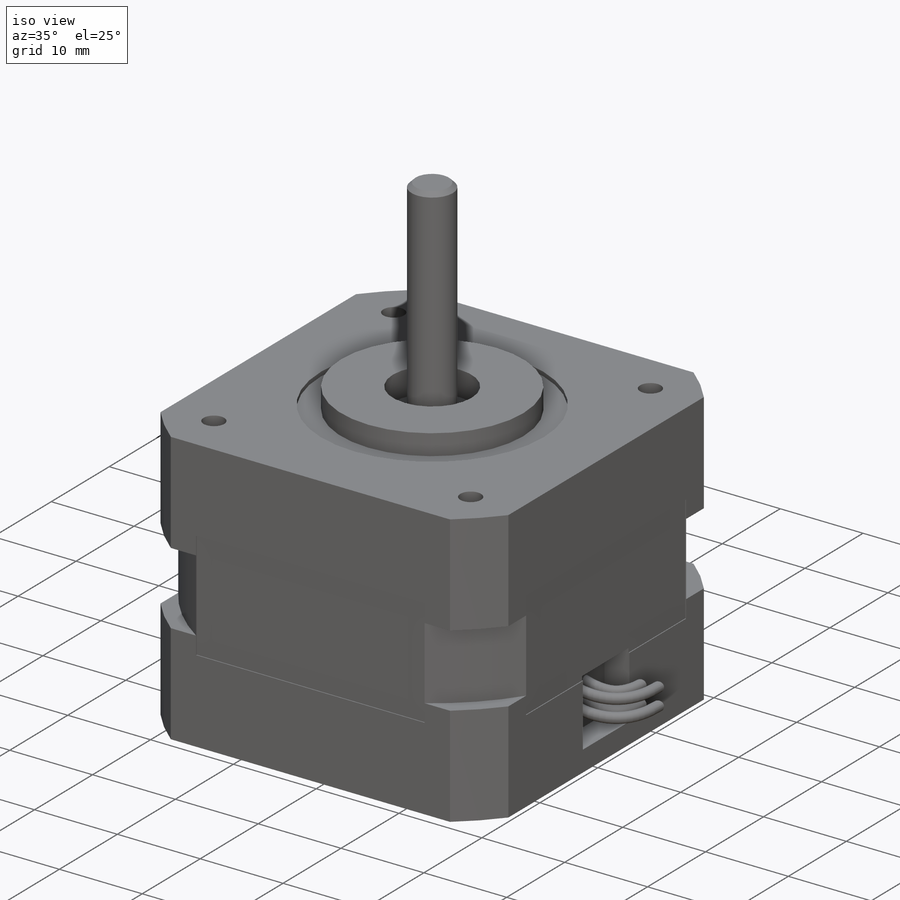
[diagram: iso view]
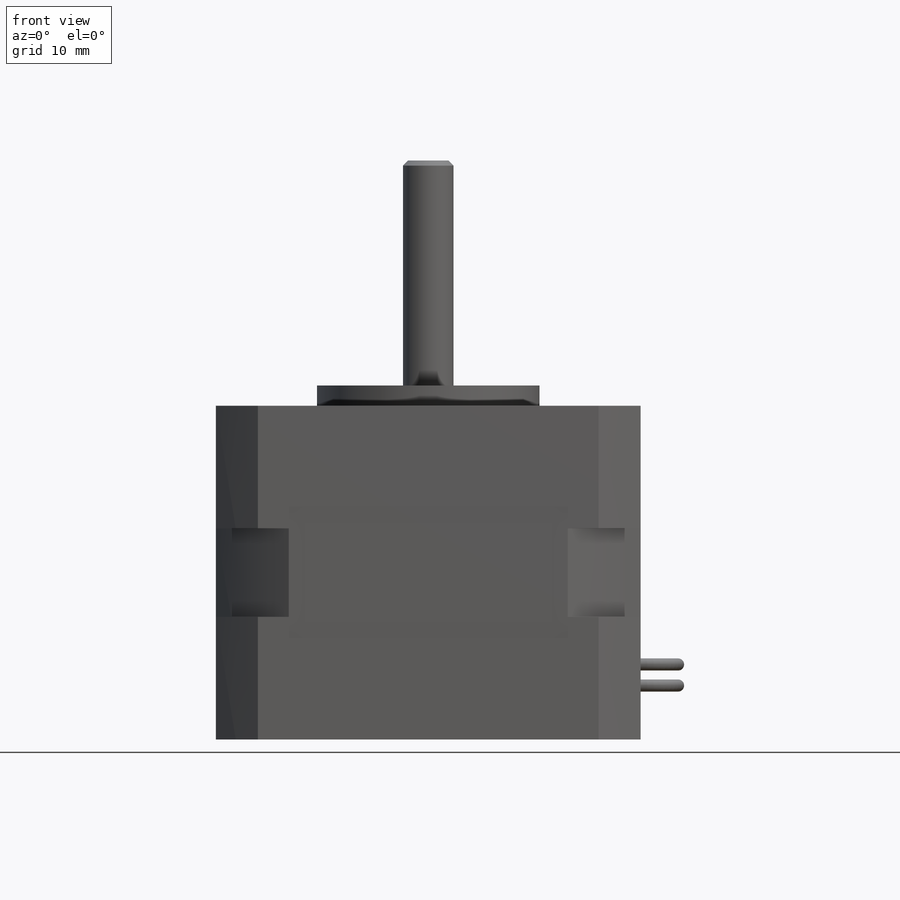
[diagram: front view]
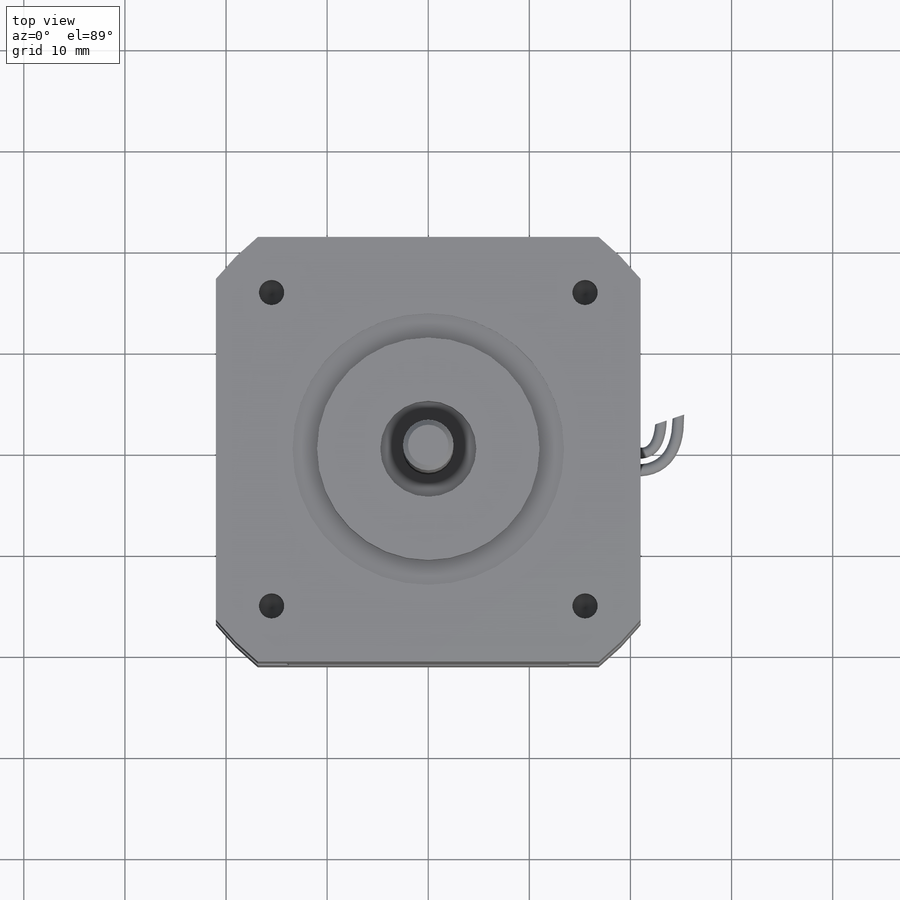
[diagram: top view]
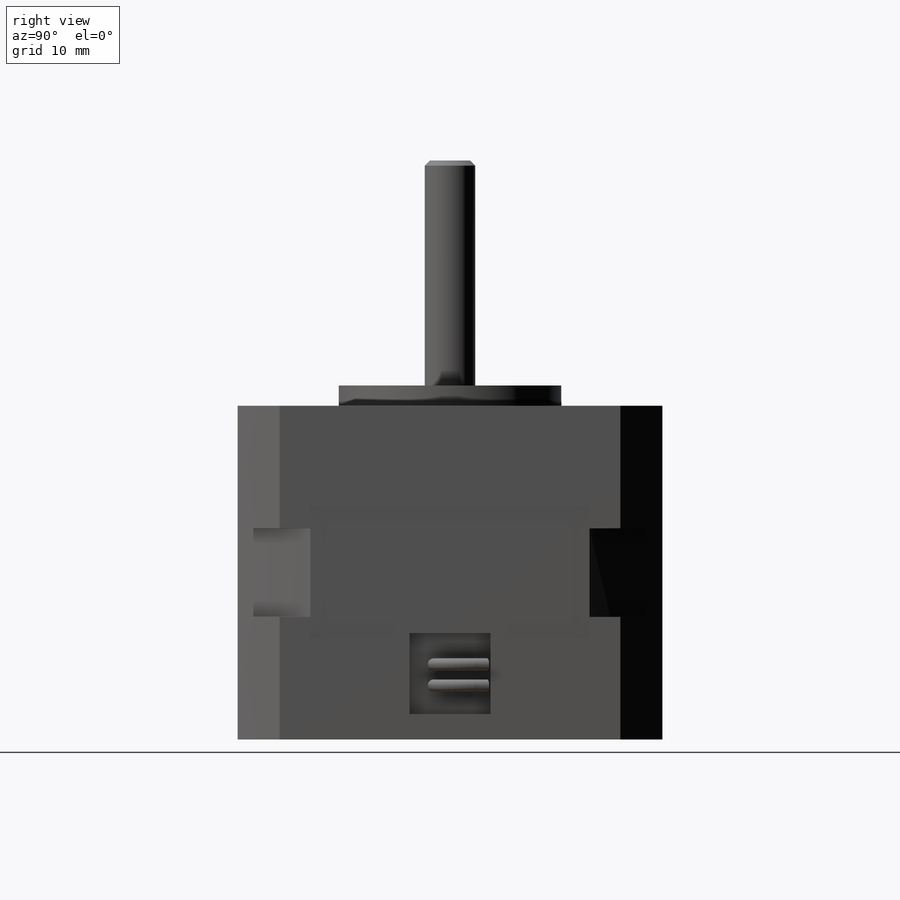
[diagram: right view]
SOLIDWORKS PART (.sldprt)
format: sldprt  version: not decoded by parser v0  size: 556,544 bytes
history: native  units: mm
features: sketch x14, cut_extrude x5, extrude x3, material x1, cut_revolve x1, chamfer x1, hole x1, sweep x1, pattern_circular x1 (+13 scaffold rows collapsed)
feature tree (41):
  scaffold x13  (default folders/planes/origin — collapsed)
  material  "Material <not specified>"
  sketch  "Sketch1"  dims[c1.D3=26.925mm c1.D1=42.0mm c1.D2=42.0mm c2.D1=42.0mm c2.D2=42.0mm]
  extrude  "Boss-Extrude2"  Depth=33mm
  sketch  "Sketch3"  dims[D1=8.75mm D2=25.125mm D3=5.0mm]
  cut_revolve  "Cut-Revolve1"  Angle=360deg
  sketch  "Sketch4"  dims[D1=26.85mm]
  cut_extrude  "Cut-Extrude1"  Depth=0.5mm
  sketch  "Sketch5"  dims[D1=22.0mm]
  extrude  "Boss-Extrude3"  Depth=2.5mm
  sketch  "Sketch6"  dims[D1=9.5mm]
  cut_extrude  "Cut-Extrude2"  Depth=3mm
  sketch  "Sketch7"  dims[D1=5.0mm]
  extrude  "Boss-Extrude4"  Depth=25.25mm
  chamfer  "Chamfer1"  Distance=0.5mm Angle=45deg
  sketch  "Sketch8"  dims[D1=9.0mm]
  cut_extrude  "Cut-Extrude3"  Depth=3mm
  sketch  "Sketch9"  dims[D1=31.0mm D2=31.0mm]
  hole  "M3x0.5 Tapped Hole1"  Diameter=2.5mm Depth=4.5mm
  sketch  "Sketch11"
  sketch  "Sketch10"  dims[hole-wizard template sketch: 50 standard entries collapsed; hole parameters above]
  sketch  "Sketch12"  dims[D1=8.0mm D2=8.0mm D3=2.5mm]
  cut_extrude  "Cut-Extrude4"  Depth=3mm
  sketch  "Sketch13"  dims[D1=1.2mm]
  sketch  "Sketch14"
  sweep  "Sweep2"
  sketch  "Sketch15"  dims[D1=13.0mm]
  cut_extrude  "Cut-Extrude5"  Depth=0.1mm
  pattern_circular  "CirPattern1"  Count=4 Angle=360deg
decode coverage: 24 of 27 modeling features carry decoded parameters
note: ~ marks probable driven/reference dimensions
note: suppression state not decoded; provenance and decode notes live in map.json
